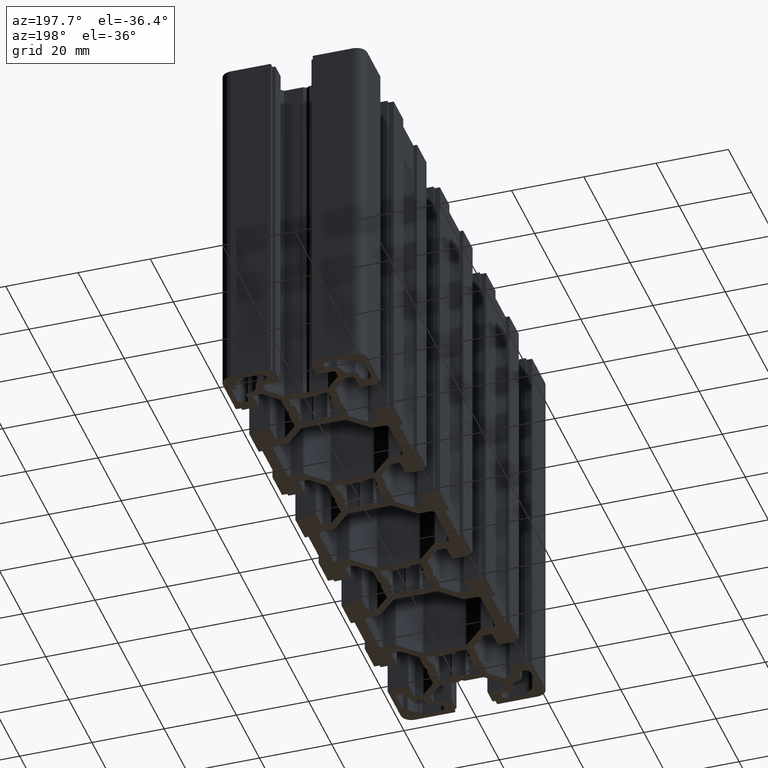
[diagram: clean part render]
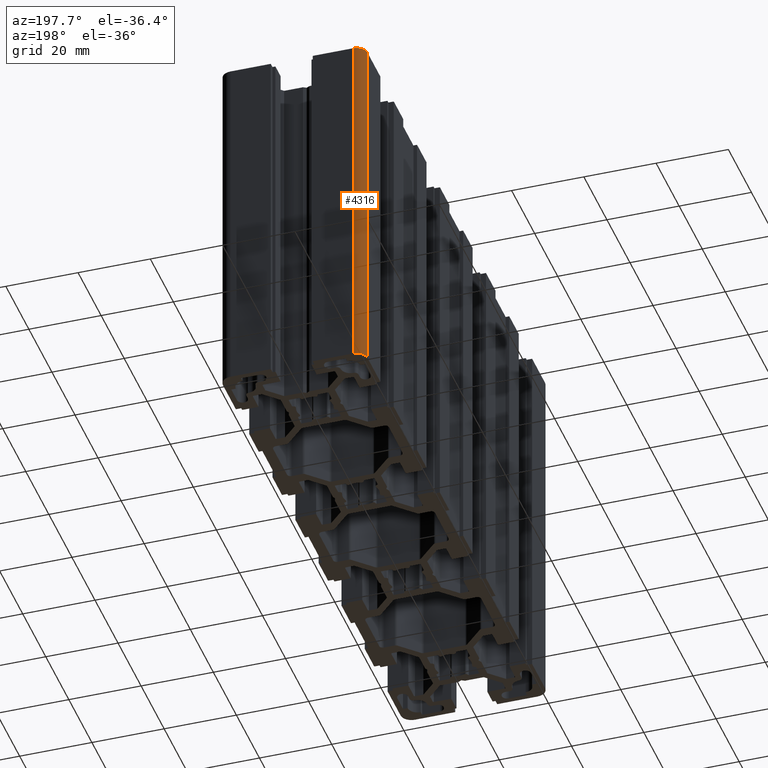
[diagram: same view with one face highlighted and labeled with its STEP entity id]
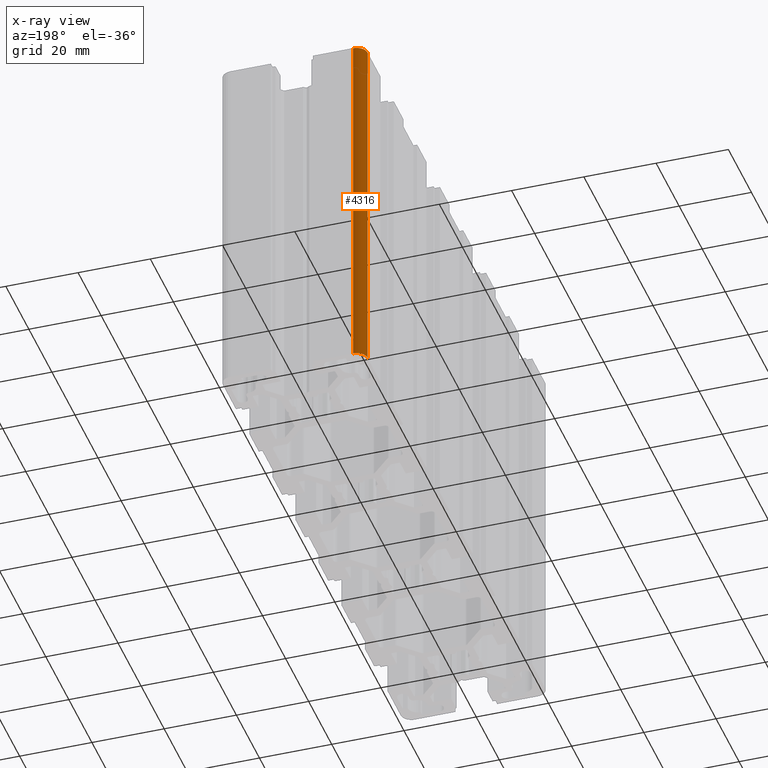
[diagram: x-ray of the same camera — body ghosted, the highlighted face saturated]
A machine part, auxiliary view. The second image highlights one B-rep face of the part: STEP entity #4316.
The next image is the same camera in x-ray: the body ghosted, the highlighted face saturated — about 0% of this face is hidden behind the body in this view.
In plain terms, the highlighted cylindrical surface (edge-blend (fillet) strip) has radius 3 mm, axis along (0, 0, -1).
Its self-contained STEP definition (entity closure, byte-faithful):
#1092 = VERTEX_POINT ( 'NONE', #8092 ) ;
#1094 = EDGE_CURVE ( 'NONE', #1092, #1095, #8091, .T. ) ;
#1095 = VERTEX_POINT ( 'NONE', #8086 ) ;
#1992 = VERTEX_POINT ( 'NONE', #9673 ) ;
#1994 = EDGE_CURVE ( 'NONE', #1995, #1992, #9672, .T. ) ;
#1995 = VERTEX_POINT ( 'NONE', #9667 ) ;
#4244 = ORIENTED_EDGE ( 'NONE', *, *, #1994, .T. ) ;
#4245 = ORIENTED_EDGE ( 'NONE', *, *, #4246, .F. ) ;
#4246 = EDGE_CURVE ( 'NONE', #1095, #1992, #13157, .T. ) ;
#4247 = ORIENTED_EDGE ( 'NONE', *, *, #1094, .F. ) ;
#4298 = ORIENTED_EDGE ( 'NONE', *, *, #4313, .T. ) ;
#4313 = EDGE_CURVE ( 'NONE', #1092, #1995, #13266, .T. ) ;
#4316 = ADVANCED_FACE ( 'NONE', ( #13262 ), #13261, .T. ) ;
#4317 = EDGE_LOOP ( 'NONE', ( #4244, #4245, #4247, #4298 ) ) ;
#8086 = CARTESIAN_POINT ( 'NONE',  ( -19.99999999999999600, 77.00000209808349900, 100.0000000000000000 ) ) ;
#8087 = DIRECTION ( 'NONE',  ( 1.000000000000000000, 0.0000000000000000000, 0.0000000000000000000 ) ) ;
#8088 = DIRECTION ( 'NONE',  ( 0.0000000000000000000, 0.0000000000000000000, 1.000000000000000000 ) ) ;
#8089 = CARTESIAN_POINT ( 'NONE',  ( -16.99999999999998900, 77.00000209808349900, 100.0000000000000000 ) ) ;
#8090 = AXIS2_PLACEMENT_3D ( 'NONE', #8089, #8088, #8087 ) ;
#8091 = CIRCLE ( 'NONE', #8090, 3.000000000000006200 ) ;
#8092 = CARTESIAN_POINT ( 'NONE',  ( -16.99999999999998900, 80.00000209808349900, 100.0000000000000000 ) ) ;
#9667 = CARTESIAN_POINT ( 'NONE',  ( -16.99999999999998900, 80.00000209808349900, 0.0000000000000000000 ) ) ;
#9668 = DIRECTION ( 'NONE',  ( 1.000000000000000000, 0.0000000000000000000, 0.0000000000000000000 ) ) ;
#9669 = DIRECTION ( 'NONE',  ( 0.0000000000000000000, 0.0000000000000000000, 1.000000000000000000 ) ) ;
#9670 = CARTESIAN_POINT ( 'NONE',  ( -16.99999999999998900, 77.00000209808349900, 0.0000000000000000000 ) ) ;
#9671 = AXIS2_PLACEMENT_3D ( 'NONE', #9670, #9669, #9668 ) ;
#9672 = CIRCLE ( 'NONE', #9671, 3.000000000000006200 ) ;
#9673 = CARTESIAN_POINT ( 'NONE',  ( -19.99999999999999600, 77.00000209808349900, 0.0000000000000000000 ) ) ;
#13154 = DIRECTION ( 'NONE',  ( 0.0000000000000000000, 0.0000000000000000000, -1.000000000000000000 ) ) ;
#13155 = VECTOR ( 'NONE', #13154, 1000.000000000000000 ) ;
#13156 = CARTESIAN_POINT ( 'NONE',  ( -19.99999999999999600, 77.00000209808349900, 100.0000000000000000 ) ) ;
#13157 = LINE ( 'NONE', #13156, #13155 ) ;
#13257 = DIRECTION ( 'NONE',  ( -1.000000000000000000, 0.0000000000000000000, 0.0000000000000000000 ) ) ;
#13258 = DIRECTION ( 'NONE',  ( 0.0000000000000000000, 0.0000000000000000000, -1.000000000000000000 ) ) ;
#13259 = CARTESIAN_POINT ( 'NONE',  ( -16.99999999999998900, 77.00000209808349900, 100.0000000000000000 ) ) ;
#13260 = AXIS2_PLACEMENT_3D ( 'NONE', #13259, #13258, #13257 ) ;
#13261 = CYLINDRICAL_SURFACE ( 'NONE', #13260, 3.000000000000006200 ) ;
#13262 = FACE_OUTER_BOUND ( 'NONE', #4317, .T. ) ;
#13263 = DIRECTION ( 'NONE',  ( 0.0000000000000000000, 0.0000000000000000000, -1.000000000000000000 ) ) ;
#13264 = VECTOR ( 'NONE', #13263, 1000.000000000000000 ) ;
#13265 = CARTESIAN_POINT ( 'NONE',  ( -16.99999999999998900, 80.00000209808349900, 100.0000000000000000 ) ) ;
#13266 = LINE ( 'NONE', #13265, #13264 ) ;